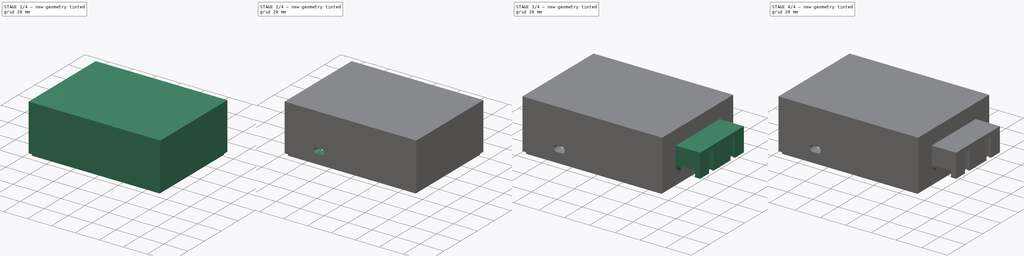
[diagram: build sequence overview — one tinted view per stage of 4, left to right]
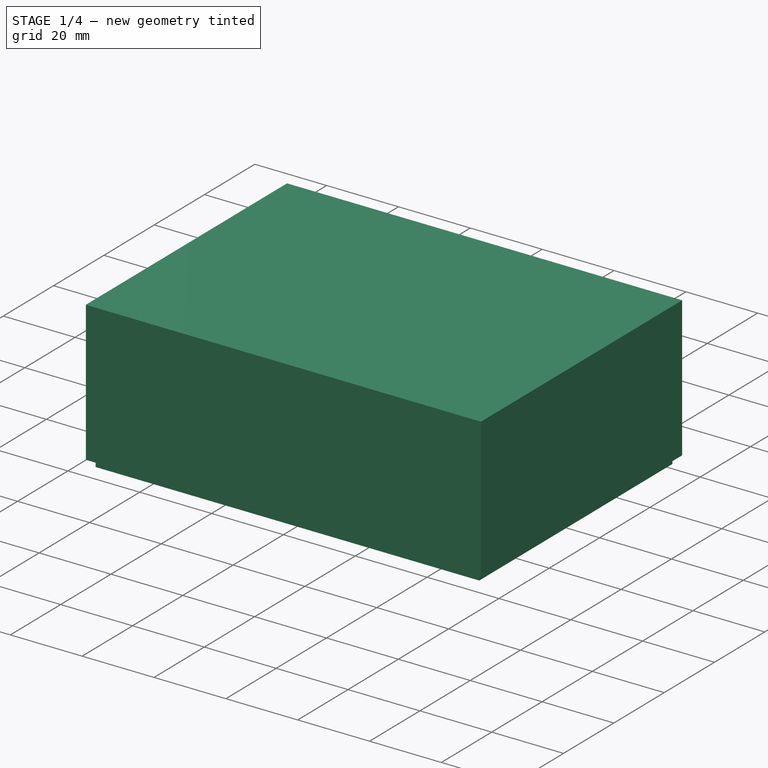
[diagram: stage 1 of 4 — iso view after this stage's code; geometry added in this stage tinted green]
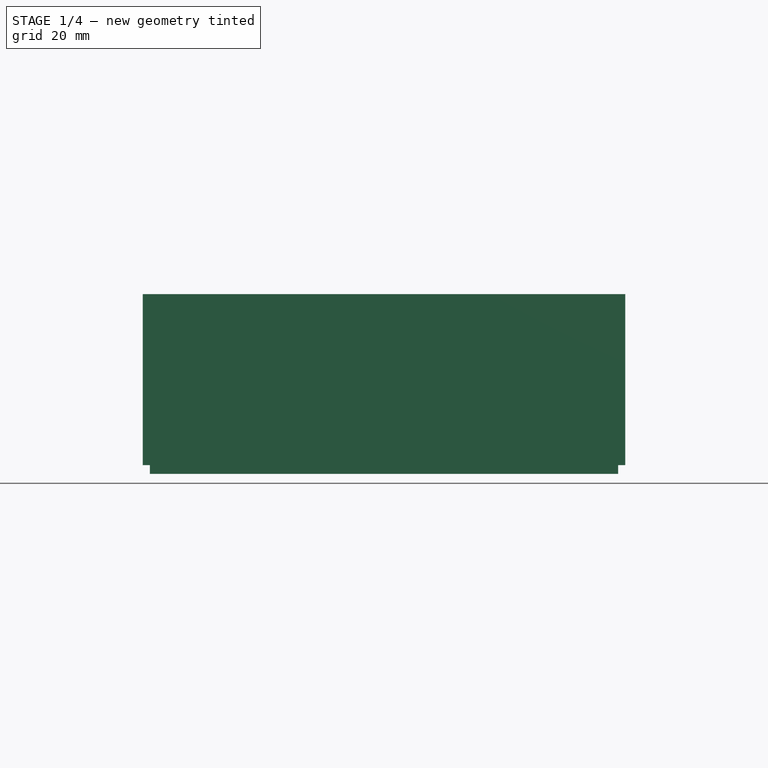
[diagram: stage 1 of 4 — front view after this stage's code; geometry added in this stage tinted green]
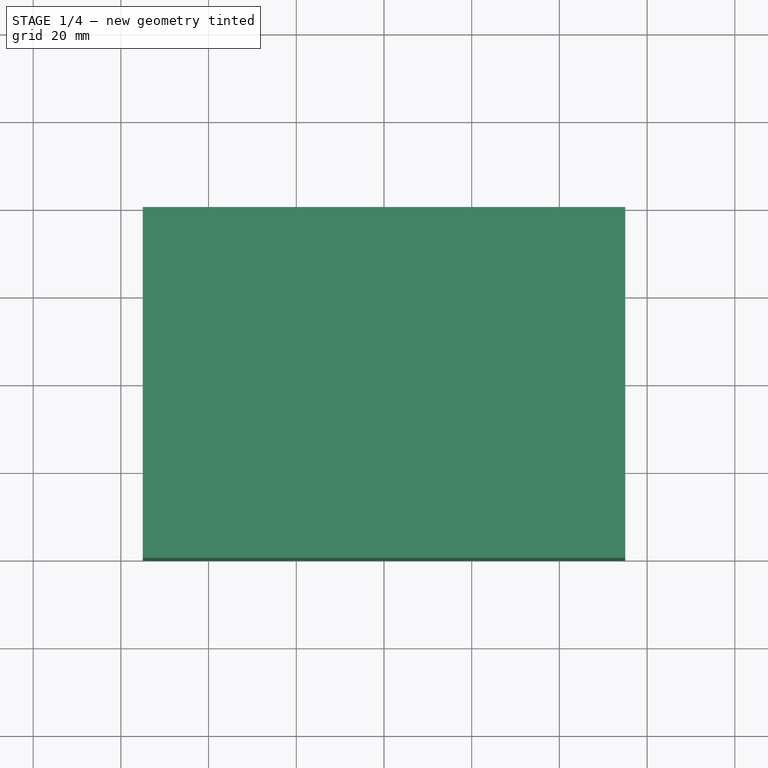
[diagram: stage 1 of 4 — top view after this stage's code; geometry added in this stage tinted green]
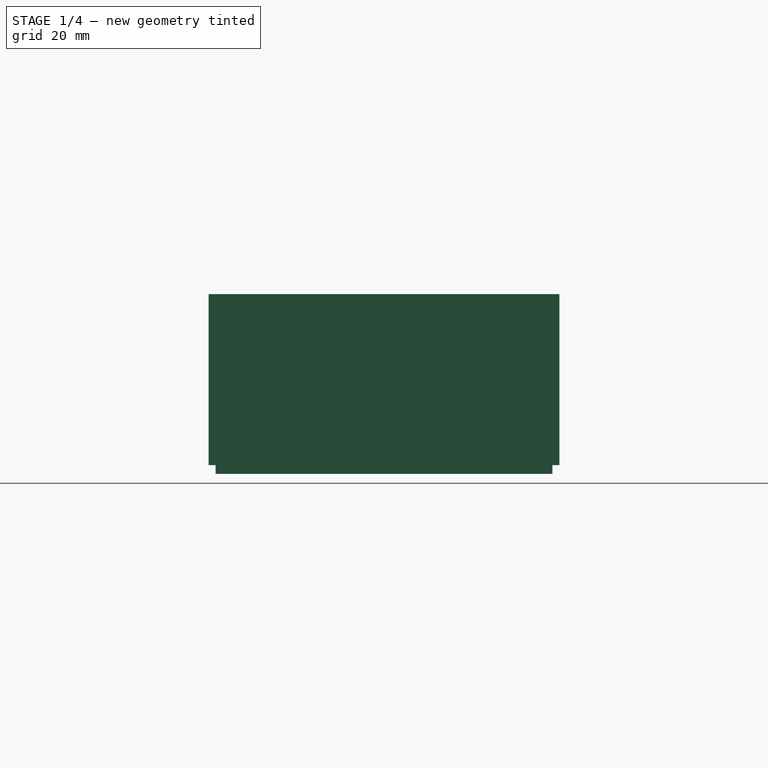
[diagram: stage 1 of 4 — right view after this stage's code; geometry added in this stage tinted green]
FCSTD DOCUMENT  (FreeCAD 1.0R39109 (Git))
Label: main_3D_top
License: All rights reserved
LicenseURL: http://en.wikipedia.org/wiki/All_rights_reserved
objects: Sketcher::SketchObject×11, PartDesign::Pad×6, PartDesign::Pocket×5, PartDesign::Body×3, Measure::MeasureLength×2, App::VarSet×1, PartDesign::Plane×1, PartDesign::Mirrored×1, PartDesign::Thickness×1, App::DocumentObjectGroup×1, App::Part×1
note: 64 computed .brp shape members not serialized (recipe doc carries the construction recipe); baked Part::Feature solids carry a one-line shape summary decoded from their .brp
EXTERNAL_REF file=main_3D_bottom.FCStd obj=VarSet

FEATURE [Sketcher::SketchObject] Sketch
  ArcFitTolerance = 1e-06
  AttachmentSupport = -> [XY_Plane]
  FullyConstrained = true
  MakeInternals = false
  MapMode = 5
  expr: Constraints[10] = main_3D_bottom#VarSet.box_len
  expr: Constraints[9] = main_3D_bottom#VarSet.box_width
  sketch-geometry (4):
    g0: LineSegment StartX=-55 StartY=40 StartZ=0 EndX=-55 EndY=-40 EndZ=0
    g1: LineSegment StartX=-55 StartY=-40 StartZ=0 EndX=55 EndY=-40 EndZ=0
    g2: LineSegment StartX=55 StartY=-40 StartZ=0 EndX=55 EndY=40 EndZ=0
    g3: LineSegment StartX=55 StartY=40 StartZ=0 EndX=-55 EndY=40 EndZ=0
  constraints (11):
    c: Coincident(g0,g1)
    c: Coincident(g1,g2)
    c: Coincident(g2,g3)
    c: Coincident(g3,g0)
    c: Vertical(g0)
    c: Vertical(g2)
    c: Horizontal(g1)
    c: Horizontal(g3)
    c: Symmetric(g0,g1,g-1)
    c: DistanceX(g3,g3) = 110
    c: DistanceY(g2,g2) = 80
FEATURE [PartDesign::Pad] Pad
  Direction = (0,0,1)
  Length = 30
  Length2 = 9
  Profile = -> Sketch
  ReferenceAxis = -> Sketch [N_Axis]
  Suppressed = false
  Type = 4
FEATURE [PartDesign::Body] Body001  label="Pille_holder"
  AllowCompound = false
  Group = -> [Sketch001,Pad001,Sketch005,Pocket002,Sketch006,Pad003,Sketch007,Pocket003,Mirrored,DatumPlane]
  Origin = -> Origin001
  Placement = pos=(-34,13,9) rot=(0,0,1;0rad)
  Tip = -> Mirrored
FEATURE [PartDesign::Thickness] Thickness
  Base = -> Pad [Face5]
  BaseFeature = -> Pad
  Intersection = false
  Join = 0
  Mode = 1
  Reversed = true
  SupportTransform = false
  Suppressed = false
  Value = 3
  expr: Value = main_3D_bottom#VarSet.Width
FEATURE [Measure::MeasureLength] Length001  label="Length001: 49,34 mm"
  Elements = -> [Body001]
  Length = 49.34
FEATURE [Measure::MeasureLength] Length003  label="Length003: 38,00 mm"
  Elements = -> [Body002]
  Length = 38
FEATURE [App::DocumentObjectGroup] Measurements
  Group = -> [Length001,Length003]
FEATURE [Sketcher::SketchObject] Sketch008
  ArcFitTolerance = 1e-06
  AttachmentSupport = -> [Thickness]
  ExternalGeometry = -> [Thickness]
  FullyConstrained = true
  MakeInternals = false
  MapMode = 5
  Placement = pos=(0,0,-9) rot=(1,0,0;3.14159rad)
  sketch-geometry (8):
    g0: LineSegment StartX=-52 StartY=37 StartZ=0 EndX=-52 EndY=-37 EndZ=0
    g1: LineSegment StartX=-52 StartY=-37 StartZ=0 EndX=52 EndY=-37 EndZ=0
    g2: LineSegment StartX=52 StartY=-37 StartZ=0 EndX=52 EndY=37 EndZ=0
    g3: LineSegment StartX=52 StartY=37 StartZ=0 EndX=-52 EndY=37 EndZ=0
    g4: LineSegment StartX=-53.4 StartY=38.4 StartZ=0 EndX=-53.4 EndY=-38.4 EndZ=0
    g5: LineSegment StartX=-53.4 StartY=-38.4 StartZ=0 EndX=53.4 EndY=-38.4 EndZ=0
    g6: LineSegment StartX=53.4 StartY=-38.4 StartZ=0 EndX=53.4 EndY=38.4 EndZ=0
    g7: LineSegment StartX=53.4 StartY=38.4 StartZ=0 EndX=-53.4 EndY=38.4 EndZ=0
  constraints (21):
    c: Coincident(g0,g1)
    c: Coincident(g1,g2)
    c: Coincident(g2,g3)
    c: Coincident(g3,g0)
    c: Vertical(g0)
    c: Vertical(g2)
    c: Horizontal(g1)
    c: Horizontal(g3)
    c: Coincident(g0,g-3)
    c: Coincident(g1,g-4)
    c: Coincident(g4,g5)
    c: Coincident(g5,g6)
    c: Coincident(g6,g7)
    c: Coincident(g7,g4)
    c: Vertical(g4)
    c: Vertical(g6)
    c: Horizontal(g5)
    c: Horizontal(g7)
    c: Symmetric(g4,g5,g-1)
    c: DistanceY(g0,g4) = 1.4
    c: DistanceX(g4,g0) = 1.4
FEATURE [PartDesign::Pad] Pad004
  BaseFeature = -> Thickness
  Direction = (0,0,-1)
  Length = 2
  Length2 = 10
  Profile = -> Sketch008
  ReferenceAxis = -> Sketch008 [N_Axis]
  Suppressed = false
  Type = 0
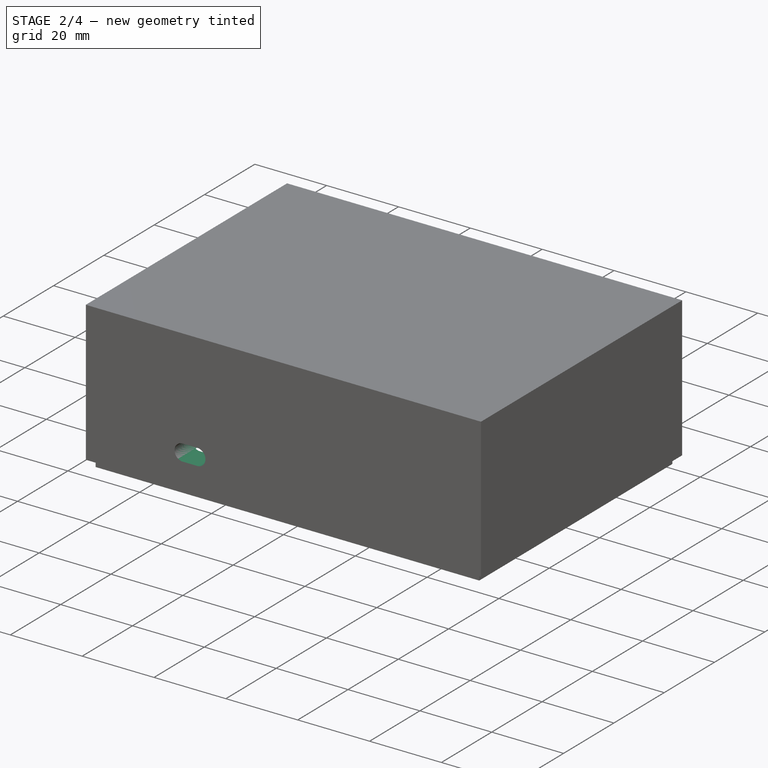
[diagram: stage 2 of 4 — iso view after this stage's code; geometry added in this stage tinted green]
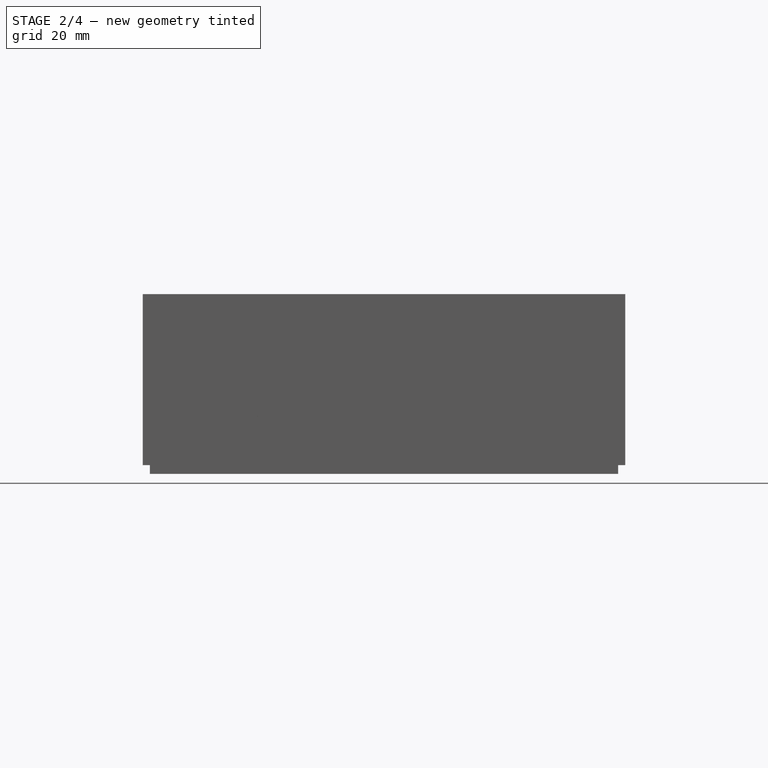
[diagram: stage 2 of 4 — front view after this stage's code; geometry added in this stage tinted green]
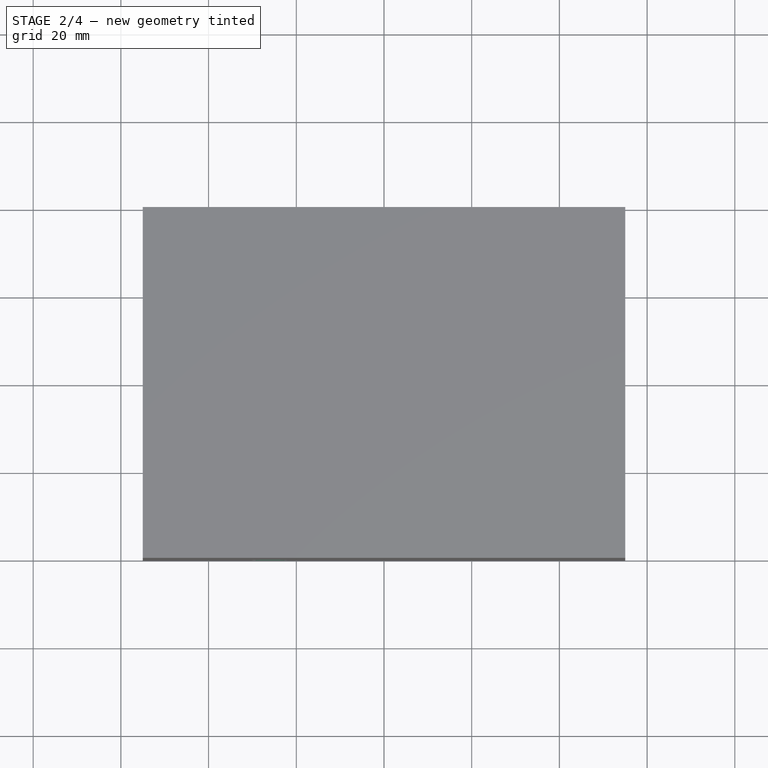
[diagram: stage 2 of 4 — top view after this stage's code; geometry added in this stage tinted green]
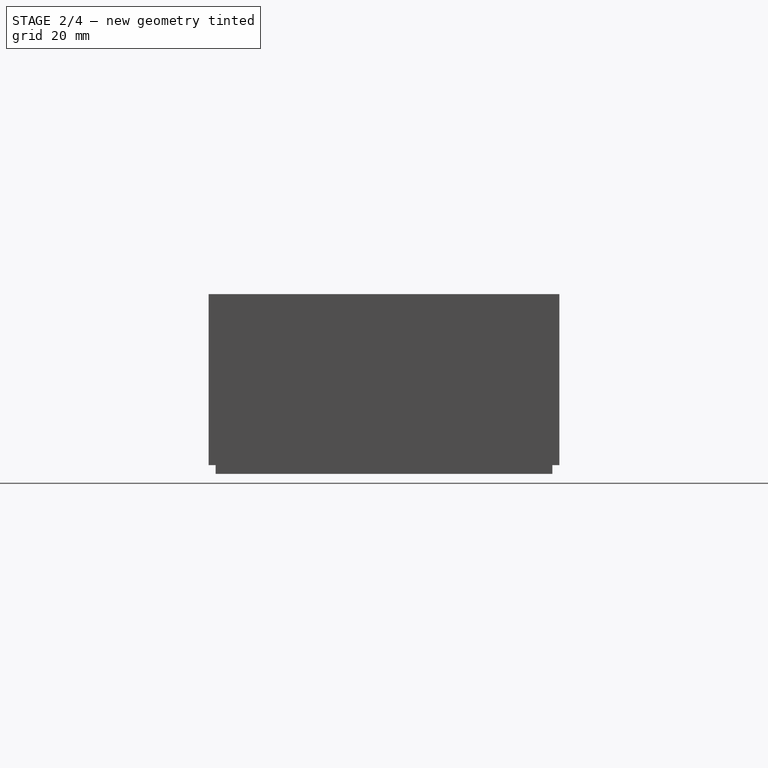
[diagram: stage 2 of 4 — right view after this stage's code; geometry added in this stage tinted green]
FEATURE [Sketcher::SketchObject] Sketch009
  ArcFitTolerance = 1e-06
  AttachmentSupport = -> [Pad004]
  ExternalGeometry = -> [Pad004]
  FullyConstrained = false
  MakeInternals = false
  MapMode = 5
  Placement = pos=(0,-37,0) rot=(0,0.707107,0.707107;3.14159rad)
  expr: Constraints[15] = main_3D_bottom#VarSet.pcb_distance_left
  sketch-geometry (8):
    g0: ArcOfCircle CenterX=23.9805 CenterY=0.030508 CenterZ=0 NormalX=0 NormalY=0 NormalZ=1 AngleXU=0 Radius=3.98051 StartAngle=1.5708 EndAngle=4.71239
    g1: ArcOfCircle CenterX=28.0195 CenterY=0.030508 CenterZ=0 NormalX=0 NormalY=0 NormalZ=1 AngleXU=0 Radius=3.98051 StartAngle=4.71239 EndAngle=7.85398
    g2: LineSegment StartX=23.9805 StartY=4.01102 StartZ=0 EndX=28.0195 EndY=4.01102 EndZ=0
    g3: LineSegment StartX=23.9805 StartY=-3.95 StartZ=0 EndX=28.0195 EndY=-3.95 EndZ=0
    g4: LineSegment [constr] StartX=20 StartY=0.030508 StartZ=0 EndX=32 EndY=0.030508 EndZ=0
    g5: GeomPoint [constr] X=26 Y=0.030508 Z=0
    g6: LineSegment [constr] StartX=42.5 StartY=0.030508 StartZ=0 EndX=32 EndY=0.030508 EndZ=0
    g7: LineSegment [constr] StartX=26 StartY=0.030508 StartZ=0 EndX=26 EndY=-7 EndZ=0
  constraints (20):
    c: Tangent(g0,g2) = 1.5708
    c: Tangent(g0,g3) = -1.5708
    c: Tangent(g1,g2) = 1.5708
    c: Tangent(g1,g3) = -1.5708
    c: Equal(g0,g1)
    c: Horizontal(g2)
    c: PointOnObject(g4,g0)
    c: PointOnObject(g4,g1)
    c: Horizontal(g4)
    c: PointOnObject(g0,g4)
    c: DistanceX(g4,g4) = 12
    c: Symmetric(g4,g4,g5)
    c: Coincident(g6,g4)
    c: Horizontal(g6)
    c: DistanceX(g5,g6) = 16.5
    c: DistanceX(g6,g-3) = 9.5
    c: Coincident(g7,g5)
    c: Vertical(g7)
    c: DistanceY(g-3,g7) = 4
    c: DistanceY(g7,g0) = 3.05
FEATURE [PartDesign::Pad] Pad005
  BaseFeature = -> Pad004
  Direction = (0,1,-2e-16)
  Length = 6.25
  Length2 = 10
  Profile = -> Sketch009
  ReferenceAxis = -> Sketch009 [N_Axis]
  Suppressed = false
  Type = 0
  expr: Length = main_3D_bottom#VarSet.pcb_distance_bottom
FEATURE [Sketcher::SketchObject] Sketch010
  ArcFitTolerance = 1e-06
  AttachmentSupport = -> [Pad005]
  ExternalGeometry = -> [Pad005]
  FullyConstrained = true
  MakeInternals = false
  MapMode = 5
  Placement = pos=(0,-30.75,0) rot=(0,0.707107,0.707107;3.14159rad)
  sketch-geometry (5):
    g0: ArcOfCircle CenterX=23.9805 CenterY=0.030508 CenterZ=0 NormalX=0 NormalY=0 NormalZ=1 AngleXU=0 Radius=2.28 StartAngle=1.5708 EndAngle=4.71239
    g1: ArcOfCircle CenterX=28.0195 CenterY=0.030508 CenterZ=0 NormalX=0 NormalY=0 NormalZ=1 AngleXU=0 Radius=2.28 StartAngle=4.71239 EndAngle=7.85398
    g2: LineSegment StartX=23.9805 StartY=2.31051 StartZ=0 EndX=28.0195 EndY=2.31051 EndZ=0
    g3: LineSegment StartX=23.9805 StartY=-2.24949 StartZ=0 EndX=28.0195 EndY=-2.24949 EndZ=0
    g4: LineSegment [constr] StartX=21.7005 StartY=0.030508 StartZ=0 EndX=30.2995 EndY=0.030508 EndZ=0
  constraints (13):
    c: Tangent(g0,g2) = 1.5708
    c: Tangent(g0,g3) = -1.5708
    c: Tangent(g1,g2) = 1.5708
    c: Tangent(g1,g3) = -1.5708
    c: Equal(g0,g1)
    c: Coincident(g-3,g0)
    c: Coincident(g1,g-4)
    c: DistanceY(g0,g0) = 4.56
    c: PointOnObject(g4,g0)
    c: PointOnObject(g4,g1)
    c: Horizontal(g4)
    c: PointOnObject(g0,g4)
    c: DistanceX(g4,g4) = 8.59898
FEATURE [PartDesign::Pocket] Pocket004
  BaseFeature = -> Pad005
  Direction = (0,-1,2e-16)
  Length = 5
  Length2 = 5
  Profile = -> Sketch010
  ReferenceAxis = -> Sketch010 [N_Axis]
  Suppressed = false
  Type = 1
FEATURE [Sketcher::SketchObject] Sketch011
  ArcFitTolerance = 1e-06
  AttachmentSupport = -> [Pocket004]
  ExternalGeometry = -> [Pocket004]
  FullyConstrained = true
  MakeInternals = false
  MapMode = 5
  Placement = pos=(0,-30.75,0) rot=(0,0.707107,0.707107;3.14159rad)
  sketch-geometry (7):
    g0: LineSegment StartX=20 StartY=-1.9 StartZ=0 EndX=20 EndY=-3.95 EndZ=0
    g1: LineSegment StartX=20 StartY=-3.95 StartZ=0 EndX=32 EndY=-3.95 EndZ=0
    g2: LineSegment StartX=32 StartY=-3.95 StartZ=0 EndX=32 EndY=-1.9 EndZ=0
    g3: LineSegment StartX=32 StartY=-1.9 StartZ=0 EndX=20 EndY=-1.9 EndZ=0
    g4: LineSegment [constr] StartX=20 StartY=-1.9 StartZ=0 EndX=20 EndY=0.030508 EndZ=0
    g5: LineSegment [constr] StartX=32 StartY=0.030508 StartZ=0 EndX=32 EndY=-1.9 EndZ=0
    g6: LineSegment [constr] StartX=20 StartY=0.030508 StartZ=0 EndX=32 EndY=0.030508 EndZ=0
  constraints (20):
    c: Coincident(g0,g1)
    c: Coincident(g1,g2)
    c: Coincident(g2,g3)
    c: Coincident(g3,g0)
    c: Vertical(g0)
    c: Vertical(g2)
    c: Horizontal(g1)
    c: Horizontal(g3)
    c: PointOnObject(g-3,g1)
    c: Coincident(g4,g0)
    c: PointOnObject(g4,g-5)
    c: Vertical(g4)
    c: PointOnObject(g5,g-6)
    c: Coincident(g5,g2)
    c: Vertical(g5)
    c: Coincident(g6,g4)
    c: Coincident(g6,g5)
    c: Horizontal(g6)
    c: PointOnObject(g-6,g6)
    c: DistanceY(g0,g0) = 2.05
FEATURE [PartDesign::Pocket] Pocket005
  BaseFeature = -> Pocket004
  Direction = (0,-1,2e-16)
  Length = 2.41
  Length2 = 5
  Profile = -> Sketch011
  ReferenceAxis = -> Sketch011 [N_Axis]
  Suppressed = false
  Type = 0
FEATURE [PartDesign::Body] Body
  AllowCompound = false
  Group = -> [Sketch,Pad,Thickness,Sketch008,Pad004,Sketch009,Pad005,Sketch010,Pocket004,Sketch011,Pocket005]
  Origin = -> Origin
  Tip = -> Pocket005
FEATURE [App::Part] Part
  Group = -> [Body,Body001,Body002]
  Origin = -> Origin003
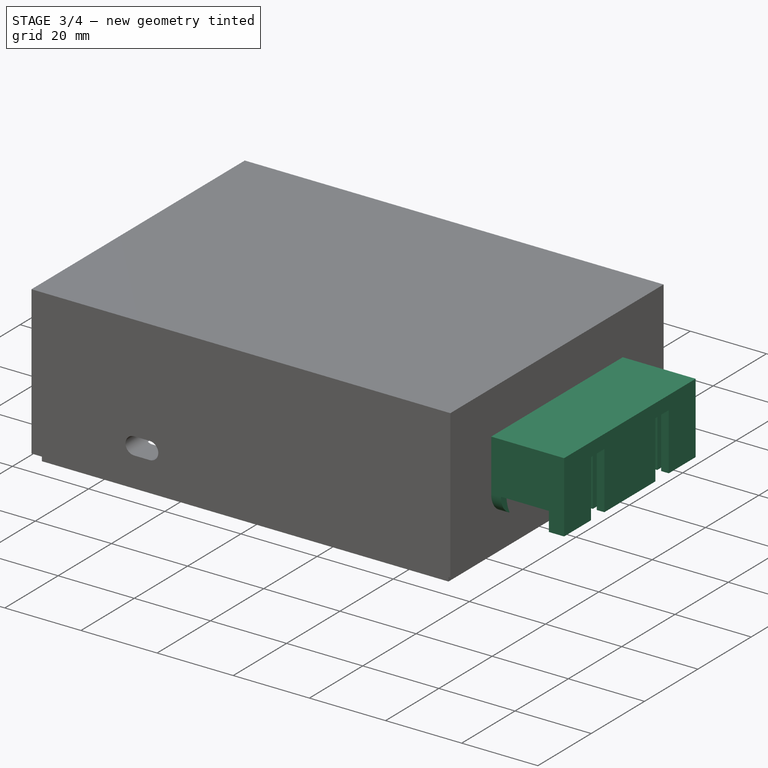
[diagram: stage 3 of 4 — iso view after this stage's code; geometry added in this stage tinted green]
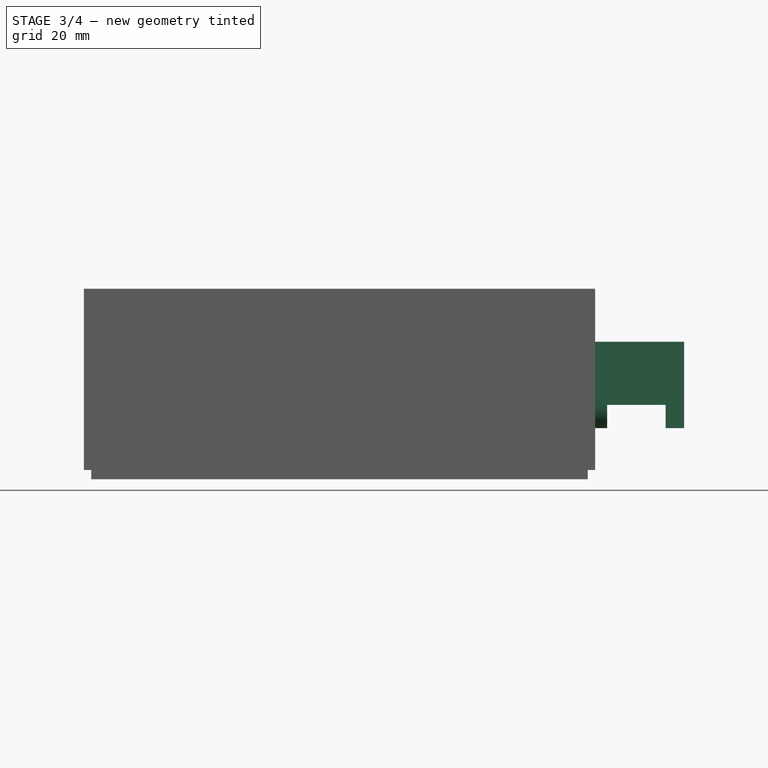
[diagram: stage 3 of 4 — front view after this stage's code; geometry added in this stage tinted green]
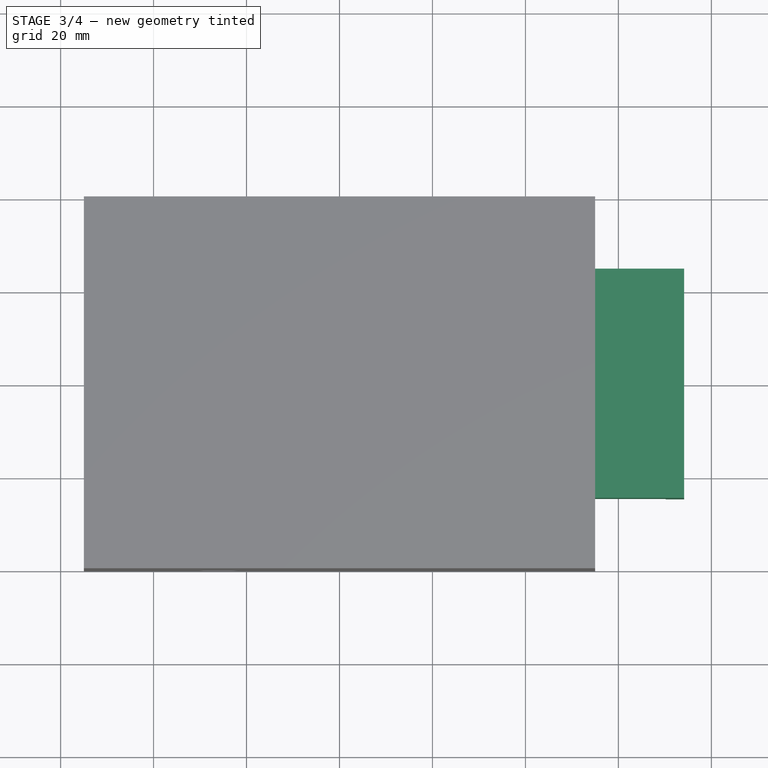
[diagram: stage 3 of 4 — top view after this stage's code; geometry added in this stage tinted green]
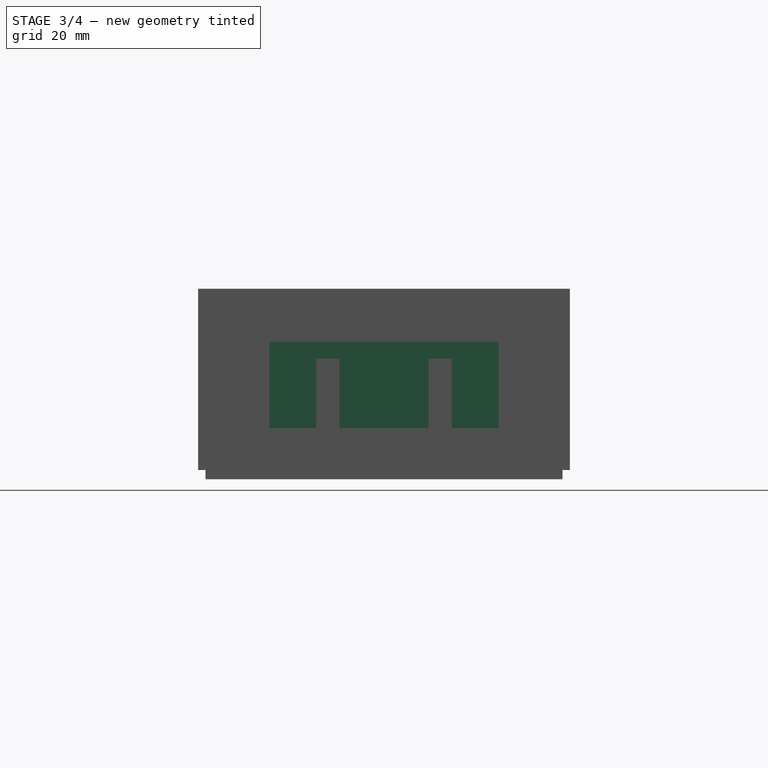
[diagram: stage 3 of 4 — right view after this stage's code; geometry added in this stage tinted green]
FEATURE [Sketcher::SketchObject] Sketch001
  ArcFitTolerance = 1e-06
  AttachmentSupport = -> [YZ_Plane001]
  FullyConstrained = true
  MakeInternals = false
  MapMode = 5
  Placement = pos=(0,0,0) rot=(0.57735,0.57735,0.57735;2.0944rad)
  sketch-geometry (21):
    g0: ArcOfCircle CenterX=12.085 CenterY=5 CenterZ=0 NormalX=0 NormalY=0 NormalZ=1 AngleXU=0 Radius=10.585 StartAngle=5.79121 EndAngle=9.91675
    g1: ArcOfCircle CenterX=-12.085 CenterY=5 CenterZ=0 NormalX=0 NormalY=0 NormalZ=1 AngleXU=0 Radius=10.585 StartAngle=5.79121 EndAngle=9.91675
    g2: LineSegment StartX=-24.67 StartY=18.585 StartZ=0 EndX=-24.67 EndY=5 EndZ=0
    g3: LineSegment StartX=24.67 StartY=5 StartZ=0 EndX=24.67 EndY=18.585 EndZ=0
    g4: LineSegment StartX=24.67 StartY=18.585 StartZ=0 EndX=-24.67 EndY=18.585 EndZ=0
    g5: LineSegment [constr] StartX=-12.085 StartY=5 StartZ=0 EndX=12.085 EndY=5 EndZ=0
    g6: GeomPoint [constr] X=-1.5 Y=5 Z=0
    g7: GeomPoint [constr] X=1.5 Y=5 Z=0
    g8: LineSegment [constr] StartX=-12.085 StartY=5 StartZ=0 EndX=-24.67 EndY=18.585 EndZ=0
    g9: LineSegment [constr] StartX=12.085 StartY=5 StartZ=0 EndX=24.67 EndY=18.585 EndZ=0
    g10: LineSegment [constr] StartX=-12.085 StartY=5 StartZ=0 EndX=-22.67 EndY=5 EndZ=0
    g11: LineSegment [constr] StartX=-22.67 StartY=5 StartZ=0 EndX=-24.67 EndY=5 EndZ=0
    g12: LineSegment [constr] StartX=-21.4146 StartY=0 StartZ=0 EndX=21.4146 EndY=0 EndZ=0
    g13: ArcOfCircle CenterX=-19.2025 CenterY=5 CenterZ=0 NormalX=0 NormalY=0 NormalZ=1 AngleXU=0 Radius=5.4675 StartAngle=3.14159 EndAngle=4.29585
    g14: ArcOfCircle CenterX=19.2025 CenterY=5 CenterZ=0 NormalX=0 NormalY=0 NormalZ=1 AngleXU=0 Radius=5.4675 StartAngle=5.12893 EndAngle=6.28319
    g15: LineSegment StartX=-2.75536 StartY=0 StartZ=0 EndX=2.75536 EndY=0 EndZ=0
    g16: GeomPoint X=22.67 Y=5 Z=0
    g17: LineSegment [constr] StartX=12.085 StartY=5 StartZ=0 EndX=22.67 EndY=5 EndZ=0
    g18: LineSegment [constr] StartX=22.67 StartY=5 StartZ=0 EndX=24.67 EndY=5 EndZ=0
    g19: LineSegment [constr] StartX=-12.085 StartY=5 StartZ=0 EndX=-12.085 EndY=18.585 EndZ=0
    g20: GeomPoint [constr] X=-12.085 Y=15.585 Z=0
  constraints (55):
    c: Equal(g0,g1)
    c: Coincident(g3,g4)
    c: Coincident(g4,g2)
    c: Vertical(g2)
    c: Vertical(g3)
    c: Horizontal(g4)
    c: Coincident(g5,g1)
    c: Coincident(g5,g0)
    c: Horizontal(g5)
    c: PointOnObject(g6,g1)
    c: PointOnObject(g6,g5)
    c: PointOnObject(g7,g5)
    c: PointOnObject(g7,g0)
    c: DistanceX(g6,g7) = 3
    c: Diameter(g0) = 21.17
    c: Coincident(g8,g1)
    c: Coincident(g8,g2)
    c: Coincident(g9,g0)
    c: Coincident(g9,g3)
    c: Coincident(g10,g1)
    c: Coincident(g11,g2)
    c: Coincident(g10,g11)
    c: PointOnObject(g10,g1)
    c: Distance(g11,g11) = 2
    c: Horizontal(g11)
    c: Horizontal(g12)
    c: Coincident(g13,g12)
    c: Coincident(g14,g12)
    c: Tangent(g14,g3) = -1.5708
    c: Tangent(g13,g2) = -1.5708
    c: Horizontal(g10)
    c: Coincident(g17,g0)
    c: Coincident(g18,g3)
    c: PointOnObject(g15,g12)
    c: PointOnObject(g15,g12)
    c: PointOnObject(g15,g0)
    c: PointOnObject(g15,g1)
    c: Symmetric(g15,g15,g-1)
    c: PointOnObject(g16,g0)
    c: Coincident(g17,g18)
    c: Horizontal(g17)
    c: Horizontal(g18)
    c: Coincident(g17,g16)
    c: Equal(g11,g18)
    c: Coincident(g1,g12)
    c: PointOnObject(g1,g12)
    c: PointOnObject(g0,g12)
    c: Coincident(g0,g12)
    c: DistanceY(g1,g10) = 5
    c: Coincident(g19,g1)
    c: PointOnObject(g19,g4)
    c: Vertical(g19)
    c: PointOnObject(g20,g19)
    c: PointOnObject(g20,g1)
    c: DistanceY(g20,g19) = 3
FEATURE [PartDesign::Pad] Pad001
  Direction = (1,0,0)
  Length = 70.15
  Length2 = 10
  Placement = pos=(0,0,0) rot=(1,1,1;2.0944rad)
  Profile = -> Sketch001
  ReferenceAxis = -> Sketch001 [N_Axis]
  Suppressed = false
  Type = 0
FEATURE [PartDesign::Body] Body002  label="GPS_holder"
  AllowCompound = false
  Group = -> [Sketch002,Pad002,Sketch003,Pocket]
  Origin = -> Origin002
  Placement = pos=(24,-32.0721,7.55755) rot=(0,-0.707107,0.707107;3.14159rad)
  Tip = -> Pocket
FEATURE [App::VarSet] VarSet
  GPS_width = 36
FEATURE [Sketcher::SketchObject] Sketch005
  ArcFitTolerance = 1e-06
  AttachmentSupport = -> [Pad001]
  ExternalGeometry = -> [Pad001]
  FullyConstrained = true
  MakeInternals = false
  MapMode = 5
  Placement = pos=(0,0,0) rot=(0.707107,0.707107,0;3.14159rad)
  sketch-geometry (15):
    g0: LineSegment StartX=-24.67 StartY=47.575 StartZ=0 EndX=-24.67 EndY=22.575 EndZ=0
    g1: LineSegment StartX=-24.67 StartY=22.575 StartZ=0 EndX=24.67 EndY=22.575 EndZ=0
    g2: LineSegment StartX=24.67 StartY=22.575 StartZ=0 EndX=24.67 EndY=47.575 EndZ=0
    g3: LineSegment StartX=24.67 StartY=47.575 StartZ=0 EndX=-24.67 EndY=47.575 EndZ=0
    g4: LineSegment StartX=-24.67 StartY=70.15 StartZ=0 EndX=-24.67 EndY=57.575 EndZ=0
    g5: LineSegment StartX=-24.67 StartY=57.575 StartZ=0 EndX=24.67 EndY=57.575 EndZ=0
    g6: LineSegment StartX=24.67 StartY=57.575 StartZ=0 EndX=24.67 EndY=70.15 EndZ=0
    g7: LineSegment StartX=24.67 StartY=70.15 StartZ=0 EndX=-24.67 EndY=70.15 EndZ=0
    g8: LineSegment StartX=-24.67 StartY=3.6e-15 StartZ=0 EndX=24.67 EndY=3.6e-15 EndZ=0
    g9: LineSegment StartX=24.67 StartY=3.6e-15 StartZ=0 EndX=24.67 EndY=12.575 EndZ=0
    g10: LineSegment StartX=24.67 StartY=12.575 StartZ=0 EndX=-24.67 EndY=12.575 EndZ=0
    g11: LineSegment StartX=-24.67 StartY=12.575 StartZ=0 EndX=-24.67 EndY=3.6e-15 EndZ=0
    g12: LineSegment [constr] StartX=-24.67 StartY=57.575 StartZ=0 EndX=-24.67 EndY=47.575 EndZ=0
    g13: LineSegment [constr] StartX=-24.67 StartY=22.575 StartZ=0 EndX=-24.67 EndY=12.575 EndZ=0
    g14: GeomPoint [constr] X=-24.67 Y=35.075 Z=0
  constraints (38):
    c: Coincident(g0,g1)
    c: Coincident(g1,g2)
    c: Coincident(g2,g3)
    c: Coincident(g3,g0)
    c: Vertical(g0)
    c: Vertical(g2)
    c: Horizontal(g1)
    c: Horizontal(g3)
    c: PointOnObject(g1,g-6)
    c: Coincident(g4,g5)
    c: Coincident(g5,g6)
    c: Coincident(g6,g7)
    c: Coincident(g7,g4)
    c: Vertical(g4)
    c: Vertical(g6)
    c: Horizontal(g5)
    c: Horizontal(g7)
    c: Coincident(g4,g-5)
    c: PointOnObject(g5,g-6)
    c: Coincident(g8,g9)
    c: Coincident(g9,g10)
    c: Coincident(g10,g11)
    c: Coincident(g11,g8)
    c: Horizontal(g8)
    c: Horizontal(g10)
    c: Vertical(g9)
    c: Vertical(g11)
    c: Coincident(g8,g-5)
    c: PointOnObject(g9,g-6)
    c: Coincident(g12,g4)
    c: Coincident(g12,g0)
    c: Coincident(g13,g0)
    c: Coincident(g13,g10)
    c: Equal(g12,g13)
    c: DistanceY(g12,g12) = 10
    c: DistanceY(g0,g0) = 25
    c: Symmetric(g0,g0,g14)
    c: Symmetric(g4,g8,g14)
FEATURE [PartDesign::Pocket] Pocket002
  BaseFeature = -> Pad001
  Direction = (0,0,1)
  Length = 5
  Length2 = 5
  Placement = pos=(0,0,0) rot=(1,1,1;2.0944rad)
  Profile = -> Sketch005
  ReferenceAxis = -> Sketch005 [N_Axis]
  Suppressed = false
  Type = 0
FEATURE [Sketcher::SketchObject] Sketch006
  ArcFitTolerance = 1e-06
  AttachmentSupport = -> [Pocket002]
  ExternalGeometry = -> [Pocket002]
  FullyConstrained = true
  MakeInternals = false
  MapMode = 5
  Placement = pos=(70.15,0,0) rot=(0.57735,0.57735,0.57735;2.0944rad)
  sketch-geometry (4):
    g0: LineSegment StartX=-24.67 StartY=18.585 StartZ=0 EndX=-24.67 EndY=0 EndZ=0
    g1: LineSegment StartX=-24.67 StartY=0 StartZ=0 EndX=24.67 EndY=0 EndZ=0
    g2: LineSegment StartX=24.67 StartY=0 StartZ=0 EndX=24.67 EndY=18.585 EndZ=0
    g3: LineSegment StartX=24.67 StartY=18.585 StartZ=0 EndX=-24.67 EndY=18.585 EndZ=0
  constraints (10):
    c: Coincident(g0,g1)
    c: Coincident(g1,g2)
    c: Coincident(g2,g3)
    c: Coincident(g3,g0)
    c: Vertical(g0)
    c: Vertical(g2)
    c: Horizontal(g1)
    c: Coincident(g0,g-3)
    c: Coincident(g2,g-3)
    c: PointOnObject(g-1,g1)
FEATURE [PartDesign::Pad] Pad003
  BaseFeature = -> Pocket002
  Direction = (1,0,0)
  Length = 4
  Length2 = 10
  Placement = pos=(0,0,0) rot=(1,1,1;2.0944rad)
  Profile = -> Sketch006
  ReferenceAxis = -> Sketch006 [N_Axis]
  Suppressed = false
  Type = 0
FEATURE [Sketcher::SketchObject] Sketch007
  ArcFitTolerance = 1e-06
  AttachmentSupport = -> [Pad003]
  ExternalGeometry = -> [Pad003]
  FullyConstrained = true
  MakeInternals = false
  MapMode = 5
  Placement = pos=(0,0,1.56e-14) rot=(0.707107,0.707107,0;3.14159rad)
  sketch-geometry (34):
    g0: LineSegment StartX=-16.085 StartY=72.15 StartZ=0 EndX=-16.085 EndY=71.15 EndZ=0
    g1: LineSegment StartX=-16.085 StartY=71.15 StartZ=0 EndX=-14.585 EndY=71.15 EndZ=0
    g2: LineSegment StartX=-8.085 StartY=71.15 StartZ=0 EndX=-8.085 EndY=72.15 EndZ=0
    g3: LineSegment StartX=-8.085 StartY=72.15 StartZ=0 EndX=-9.585 EndY=72.15 EndZ=0
    g4: LineSegment StartX=-14.585 StartY=74.15 StartZ=0 EndX=-14.585 EndY=72.15 EndZ=0
    g5: LineSegment StartX=-14.585 StartY=70.15 StartZ=0 EndX=-9.585 EndY=70.15 EndZ=0
    g6: LineSegment StartX=-9.585 StartY=70.15 StartZ=0 EndX=-9.585 EndY=71.15 EndZ=0
    g7: LineSegment StartX=-9.585 StartY=74.15 StartZ=0 EndX=-14.585 EndY=74.15 EndZ=0
    g8: LineSegment StartX=-14.585 StartY=72.15 StartZ=0 EndX=-16.085 EndY=72.15 EndZ=0
    g9: LineSegment StartX=-9.585 StartY=71.15 StartZ=0 EndX=-8.085 EndY=71.15 EndZ=0
    g10: LineSegment StartX=-14.585 StartY=71.15 StartZ=0 EndX=-14.585 EndY=70.15 EndZ=0
    g11: LineSegment StartX=-9.585 StartY=72.15 StartZ=0 EndX=-9.585 EndY=74.15 EndZ=0
    g12: LineSegment [constr] StartX=-14.585 StartY=72.15 StartZ=0 EndX=-14.585 EndY=71.15 EndZ=0
    g13: LineSegment [constr] StartX=-9.585 StartY=72.15 StartZ=0 EndX=-9.585 EndY=71.15 EndZ=0
    g14: LineSegment [constr] StartX=-9.585 StartY=71.15 StartZ=0 EndX=-14.585 EndY=71.15 EndZ=0
    g15: LineSegment [constr] StartX=-14.585 StartY=72.15 StartZ=0 EndX=-9.585 EndY=72.15 EndZ=0
    g16: GeomPoint [constr] X=-12.085 Y=70.15 Z=0
    g17: LineSegment StartX=16.085 StartY=72.15 StartZ=0 EndX=16.085 EndY=71.15 EndZ=0
    g18: LineSegment StartX=16.085 StartY=71.15 StartZ=0 EndX=14.585 EndY=71.15 EndZ=0
    g19: LineSegment StartX=8.085 StartY=71.15 StartZ=0 EndX=8.085 EndY=72.15 EndZ=0
    g20: LineSegment StartX=8.085 StartY=72.15 StartZ=0 EndX=9.585 EndY=72.15 EndZ=0
    g21: LineSegment StartX=14.585 StartY=74.15 StartZ=0 EndX=14.585 EndY=72.15 EndZ=0
    g22: LineSegment StartX=14.585 StartY=70.15 StartZ=0 EndX=9.585 EndY=70.15 EndZ=0
    g23: LineSegment StartX=9.585 StartY=70.15 StartZ=0 EndX=9.585 EndY=71.15 EndZ=0
    g24: LineSegment StartX=9.585 StartY=74.15 StartZ=0 EndX=14.585 EndY=74.15 EndZ=0
    g25: LineSegment StartX=14.585 StartY=72.15 StartZ=0 EndX=16.085 EndY=72.15 EndZ=0
    g26: LineSegment StartX=9.585 StartY=71.15 StartZ=0 EndX=8.085 EndY=71.15 EndZ=0
    g27: LineSegment StartX=14.585 StartY=71.15 StartZ=0 EndX=14.585 EndY=70.15 EndZ=0
    g28: LineSegment StartX=9.585 StartY=72.15 StartZ=0 EndX=9.585 EndY=74.15 EndZ=0
    g29: LineSegment [constr] StartX=14.585 StartY=72.15 StartZ=0 EndX=14.585 EndY=71.15 EndZ=0
    g30: LineSegment [constr] StartX=9.585 StartY=72.15 StartZ=0 EndX=9.585 EndY=71.15 EndZ=0
    g31: LineSegment [constr] StartX=9.585 StartY=71.15 StartZ=0 EndX=14.585 EndY=71.15 EndZ=0
    g32: LineSegment [constr] StartX=14.585 StartY=72.15 StartZ=0 EndX=9.585 EndY=72.15 EndZ=0
    g33: GeomPoint [constr] X=12.085 Y=70.15 Z=0
  constraints (92):
    c: Coincident(g0,g1)
    c: Coincident(g9,g2)
    c: Coincident(g2,g3)
    c: Coincident(g8,g0)
    c: Vertical(g0)
    c: Vertical(g2)
    c: Horizontal(g1)
    c: Horizontal(g3)
    c: Coincident(g10,g5)
    c: Coincident(g5,g6)
    c: Coincident(g11,g7)
    c: Coincident(g7,g4)
    c: Vertical(g4)
    c: Vertical(g6)
    c: Horizontal(g5)
    c: Horizontal(g7)
    c: PointOnObject(g4,g-3)
    c: PointOnObject(g3,g11)
    c: PointOnObject(g1,g10)
    c: Coincident(g4,g8)
    c: PointOnObject(g10,g1)
    c: Coincident(g6,g9)
    c: PointOnObject(g11,g3)
    c: Vertical(g11)
    c: Coincident(g12,g4)
    c: Coincident(g12,g1)
    c: Vertical(g12)
    c: Coincident(g13,g3)
    c: Coincident(g13,g6)
    c: Vertical(g13)
    c: Coincident(g14,g6)
    c: Coincident(g14,g10)
    c: Horizontal(g14)
    c: Coincident(g15,g11)
    c: Horizontal(g15)
    c: DistanceX(g0,g2) = 8
    c: DistanceX(g7,g7) = 5
    c: Vertical(g10)
    c: Horizontal(g8)
    c: Horizontal(g9)
    c: Coincident(g15,g4)
    c: Symmetric(g5,g5,g16)
    c: Symmetric(g-6,g-5,g16)
    c: Equal(g9,g1)
    c: DistanceY(g2,g2) = 1
    c: DistanceY(g6,g6) = 1
    c: Coincident(g17,g18)
    c: Coincident(g26,g19)
    c: Coincident(g19,g20)
    c: Coincident(g25,g17)
    c: Vertical(g17)
    c: Vertical(g19)
    c: Horizontal(g18)
    c: Horizontal(g20)
    c: Coincident(g27,g22)
    c: Coincident(g22,g23)
    c: Coincident(g28,g24)
    c: Coincident(g24,g21)
    c: Vertical(g21)
    c: Vertical(g23)
    c: Horizontal(g22)
    c: Horizontal(g24)
    c: PointOnObject(g20,g28)
    c: PointOnObject(g18,g27)
    c: Coincident(g21,g25)
    c: PointOnObject(g27,g18)
    c: Coincident(g23,g26)
    c: PointOnObject(g28,g20)
    c: Vertical(g28)
    c: Coincident(g29,g21)
    c: Coincident(g29,g18)
    c: Vertical(g29)
    c: Coincident(g30,g20)
    c: Coincident(g30,g23)
    c: Vertical(g30)
    c: Coincident(g31,g23)
    c: Coincident(g31,g27)
    c: Horizontal(g31)
    c: Coincident(g32,g28)
    c: Horizontal(g32)
    c: Vertical(g27)
    c: Horizontal(g25)
    c: Horizontal(g26)
    c: Coincident(g32,g21)
    c: Symmetric(g22,g22,g33)
    c: Equal(g26,g18)
    c: Symmetric(g-7,g-8,g33)
    c: Equal(g2,g19)
    c: Equal(g23,g6)
    c: Equal(g20,g3)
    c: PointOnObject(g24,g-3)
    c: Equal(g5,g22)
FEATURE [PartDesign::Pocket] Pocket003
  BaseFeature = -> Pad003
  Direction = (0,0,1)
  Length = 15
  Length2 = 5
  Placement = pos=(0,0,0) rot=(1,1,1;2.0944rad)
  Profile = -> Sketch007
  ReferenceAxis = -> Sketch007 [N_Axis]
  Suppressed = false
  Type = 0
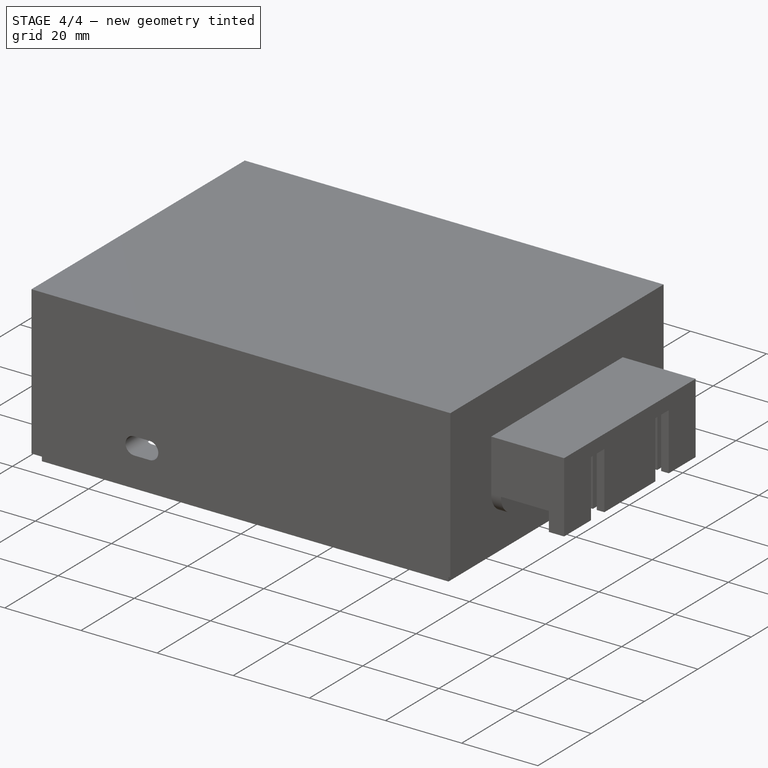
[diagram: stage 4 of 4 — iso view after this stage's code; geometry added in this stage tinted green]
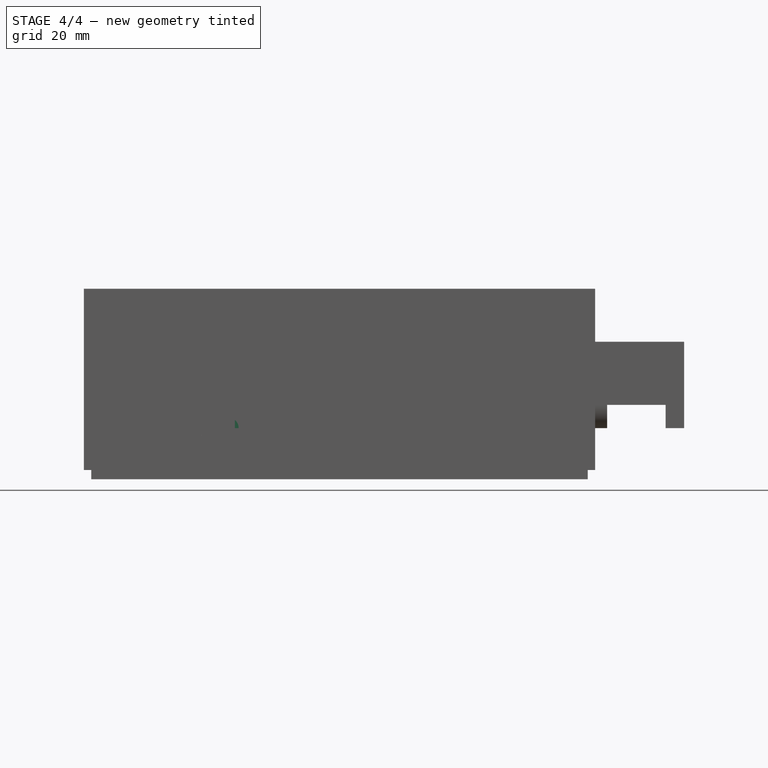
[diagram: stage 4 of 4 — front view after this stage's code; geometry added in this stage tinted green]
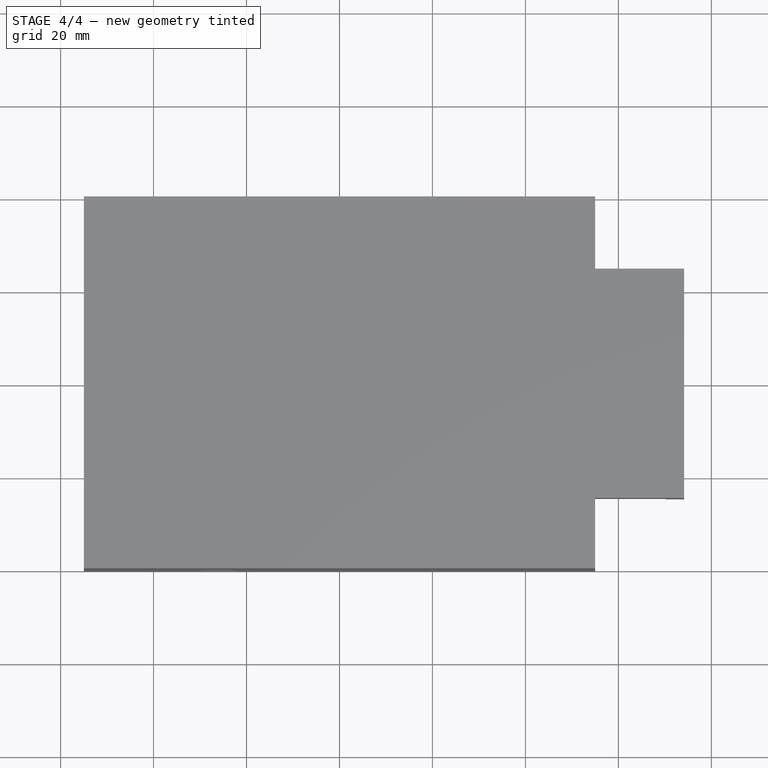
[diagram: stage 4 of 4 — top view after this stage's code; geometry added in this stage tinted green]
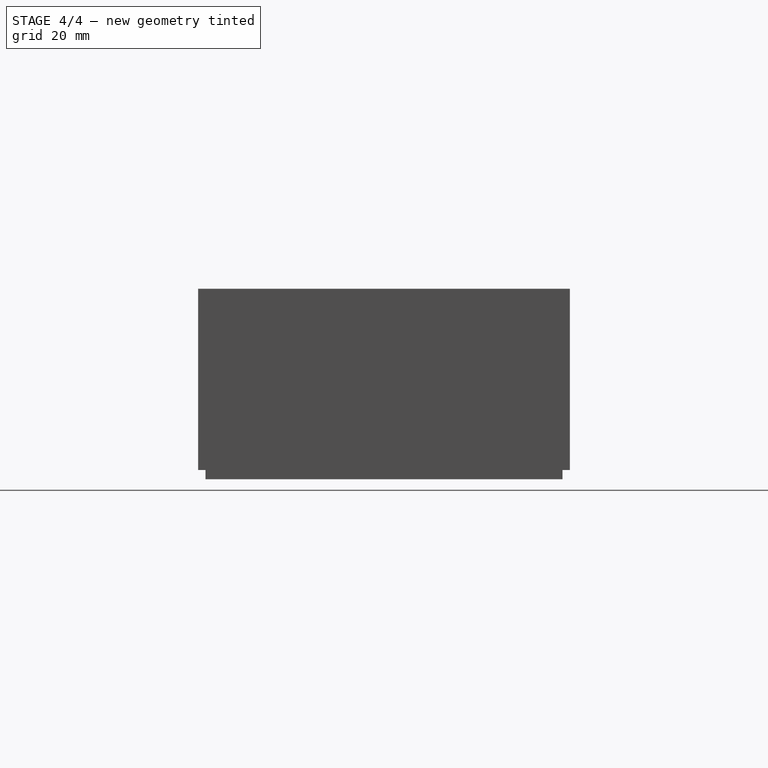
[diagram: stage 4 of 4 — right view after this stage's code; geometry added in this stage tinted green]
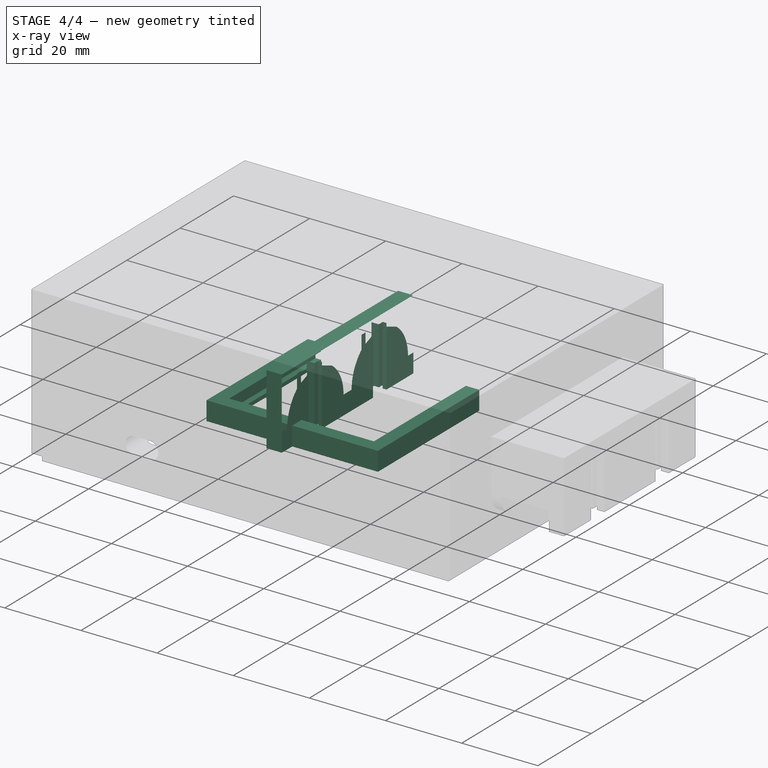
[diagram: stage 4 of 4 — x-ray composite at the iso view; earlier geometry ghosted, this stage's added geometry solid]
FEATURE [Sketcher::SketchObject] Sketch002
  ArcFitTolerance = 1e-06
  AttachmentSupport = -> [XY_Plane002]
  FullyConstrained = true
  MakeInternals = false
  MapMode = 5
  expr: Constraints[22] = VarSet.GPS_width
  sketch-geometry (15):
    g0: LineSegment StartX=-19 StartY=17.25 StartZ=0 EndX=-19 EndY=-17.25 EndZ=0
    g1: LineSegment StartX=-19 StartY=-17.25 StartZ=0 EndX=19 EndY=-17.25 EndZ=0
    g2: LineSegment StartX=19 StartY=-17.25 StartZ=0 EndX=19 EndY=17.25 EndZ=0
    g3: LineSegment StartX=20.5 StartY=17.25 StartZ=0 EndX=22.5 EndY=17.25 EndZ=0
    g4: LineSegment StartX=-22.5 StartY=17.25 StartZ=0 EndX=-22.5 EndY=-20.75 EndZ=0
    g5: LineSegment StartX=-22.5 StartY=-20.75 StartZ=0 EndX=22.5 EndY=-20.75 EndZ=0
    g6: LineSegment StartX=22.5 StartY=-20.75 StartZ=0 EndX=22.5 EndY=17.25 EndZ=0
    g7: LineSegment [constr] StartX=22.5 StartY=17.25 StartZ=0 EndX=-22.5 EndY=17.25 EndZ=0
    g8: LineSegment StartX=-22.5 StartY=17.25 StartZ=0 EndX=-20.5 EndY=17.25 EndZ=0
    g9: LineSegment [constr] StartX=-20.5 StartY=17.25 StartZ=0 EndX=-20.5 EndY=-18.75 EndZ=0
    g10: LineSegment [constr] StartX=20.5 StartY=17.25 StartZ=0 EndX=20.5 EndY=-18.75 EndZ=0
    g11: LineSegment [constr] StartX=20.5 StartY=-18.75 StartZ=0 EndX=-20.5 EndY=-18.75 EndZ=0
    g12: LineSegment StartX=-20.5 StartY=17.25 StartZ=0 EndX=-19 EndY=17.25 EndZ=0
    g13: LineSegment StartX=20.5 StartY=17.25 StartZ=0 EndX=19 EndY=17.25 EndZ=0
    g14: GeomPoint [constr] X=1.3e-15 Y=17.25 Z=0
  constraints (38):
    c: Coincident(g0,g1)
    c: Coincident(g1,g2)
    c: Vertical(g0)
    c: Vertical(g2)
    c: Horizontal(g1)
    c: Horizontal(g3)
    c: Coincident(g4,g5)
    c: Coincident(g5,g6)
    c: Coincident(g6,g7)
    c: Coincident(g7,g4)
    c: Vertical(g4)
    c: Vertical(g6)
    c: Horizontal(g5)
    c: Horizontal(g7)
    c: Symmetric(g0,g1,g-1)
    c: Coincident(g6,g3)
    c: Vertical(g9)
    c: Vertical(g10)
    c: Coincident(g11,g9)
    c: Horizontal(g11)
    c: Coincident(g10,g11)
    c: DistanceX(g9,g10) = 41
    c: DistanceY(g10,g10) = 36
    c: DistanceX(g2,g10) = 1.5
    c: DistanceY(g10,g1) = 1.5
    c: Coincident(g8,g9)
    c: Coincident(g12,g8)
    c: Coincident(g12,g0)
    c: Horizontal(g12)
    c: Coincident(g3,g10)
    c: Coincident(g13,g3)
    c: Coincident(g13,g2)
    c: DistanceY(g4,g9) = 2
    c: DistanceX(g3,g3) = 2
    c: Symmetric(g7,g7,g14)
    c: Symmetric(g0,g2,g14)
    c: Symmetric(g3,g8,g14)
    c: Symmetric(g8,g3,g14)
FEATURE [PartDesign::Pad] Pad002
  Direction = (0,0,1)
  Length = 5
  Length2 = 10
  Profile = -> Sketch002
  ReferenceAxis = -> Sketch002 [N_Axis]
  Suppressed = false
  Type = 0
FEATURE [Sketcher::SketchObject] Sketch003
  ArcFitTolerance = 1e-06
  AttachmentSupport = -> [Pad002]
  ExternalGeometry = -> [Pad002]
  FullyConstrained = true
  MakeInternals = false
  MapMode = 5
  Placement = pos=(-8.18e-14,17.25,0) rot=(0,0.707107,0.707107;3.14159rad)
  sketch-geometry (4):
    g0: LineSegment StartX=-20.5 StartY=3 StartZ=0 EndX=-20.5 EndY=1 EndZ=0
    g1: LineSegment StartX=-20.5 StartY=1 StartZ=0 EndX=20.5 EndY=1 EndZ=0
    g2: LineSegment StartX=20.5 StartY=1 StartZ=0 EndX=20.5 EndY=3 EndZ=0
    g3: LineSegment StartX=20.5 StartY=3 StartZ=0 EndX=-20.5 EndY=3 EndZ=0
  constraints (12):
    c: Coincident(g0,g1)
    c: Coincident(g1,g2)
    c: Coincident(g2,g3)
    c: Coincident(g3,g0)
    c: Vertical(g0)
    c: Vertical(g2)
    c: Horizontal(g1)
    c: Horizontal(g3)
    c: PointOnObject(g0,g-3)
    c: PointOnObject(g1,g-4)
    c: DistanceY(g0,g0) = 2
    c: DistanceY(g-3,g0) = 1
FEATURE [PartDesign::Pocket] Pocket
  BaseFeature = -> Pad002
  Direction = (4.7e-15,-1,2e-16)
  Length = 36
  Length2 = 5
  Profile = -> Sketch003
  ReferenceAxis = -> Sketch003 [N_Axis]
  Suppressed = false
  Type = 0
  expr: Length = VarSet.GPS_width
FEATURE [PartDesign::Plane] DatumPlane
  AttachmentOffset = pos=(0,0,-35.075) rot=(0,0,1;0rad)
  AttachmentSupport = -> [Pocket003]
  Length = 60
  MapMode = 5
  Placement = pos=(35.075,0,0) rot=(0.57735,0.57735,-0.57735;4.18879rad)
  ResizeMode = 0
  Width = 60
FEATURE [PartDesign::Mirrored] Mirrored
  BaseFeature = -> Pocket003
  MirrorPlane = -> DatumPlane
  Originals = -> [Pad003,Pocket003]
  Placement = pos=(0,0,0) rot=(1,1,1;2.0944rad)
  Suppressed = false
  TransformMode = 0
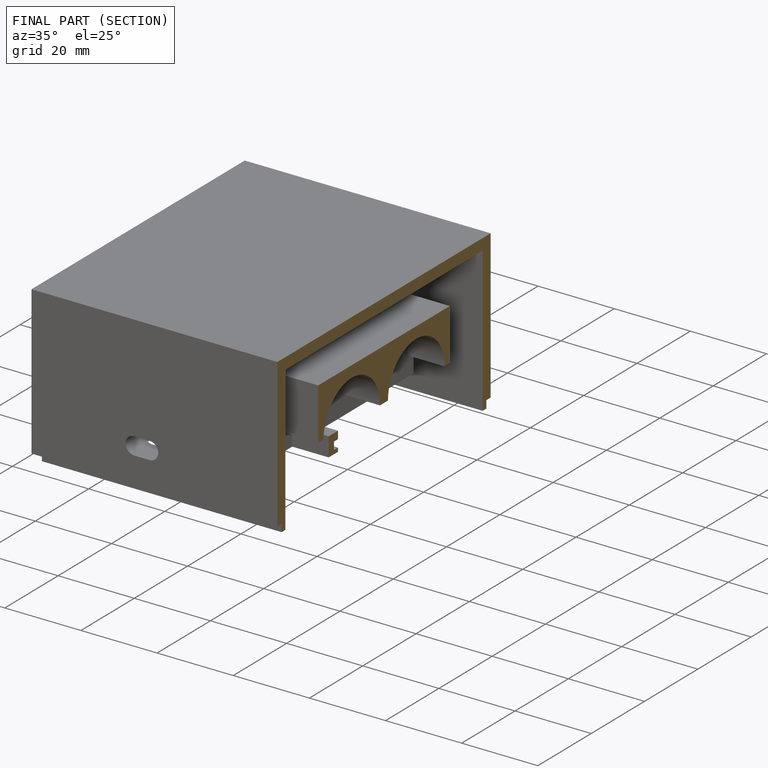
[diagram: finished part — half-section view (interior)]
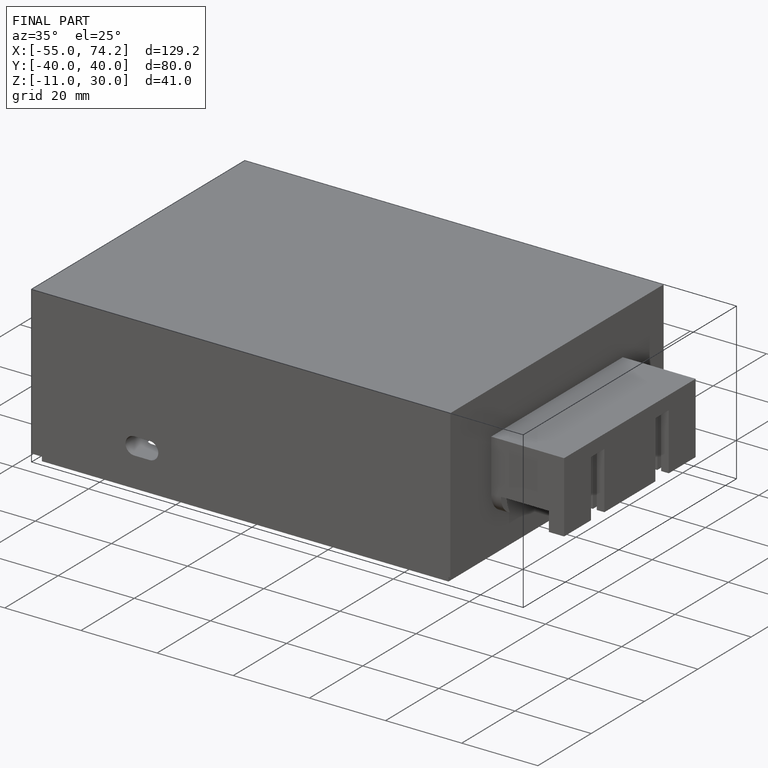
[diagram: finished part — iso view with bounding-box wireframe]
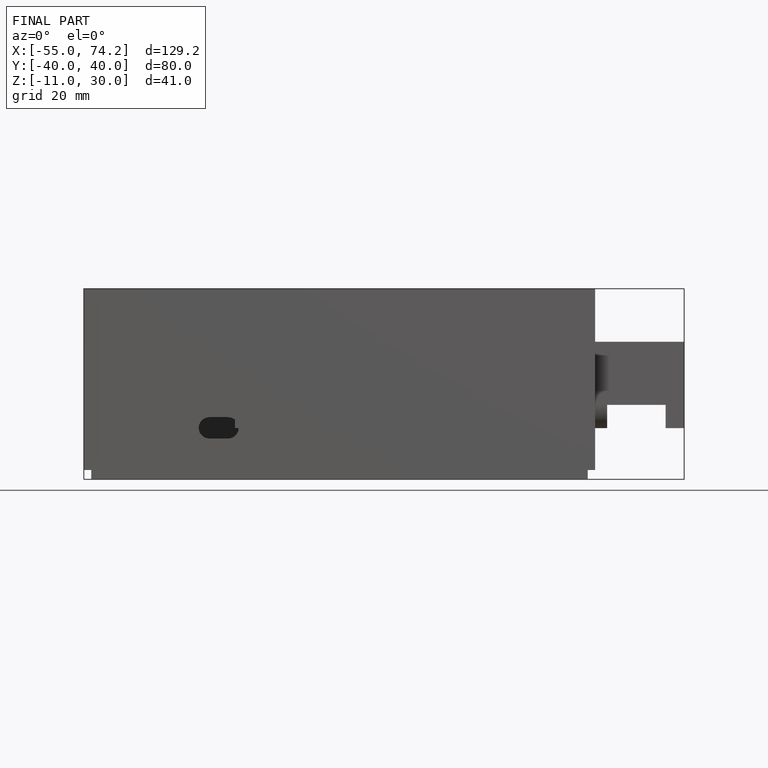
[diagram: finished part — front view with bounding-box wireframe]
